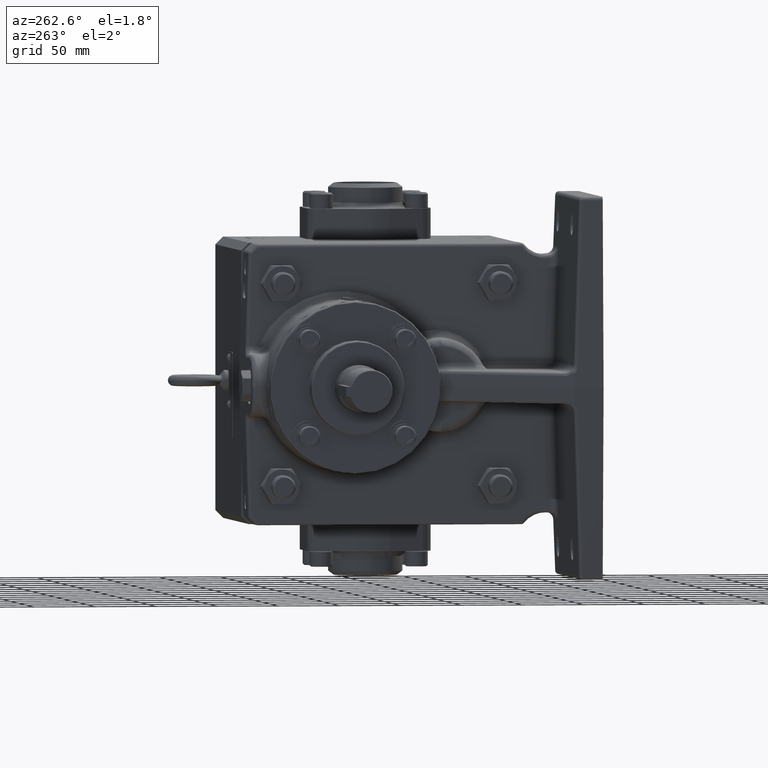
[diagram: clean part render]
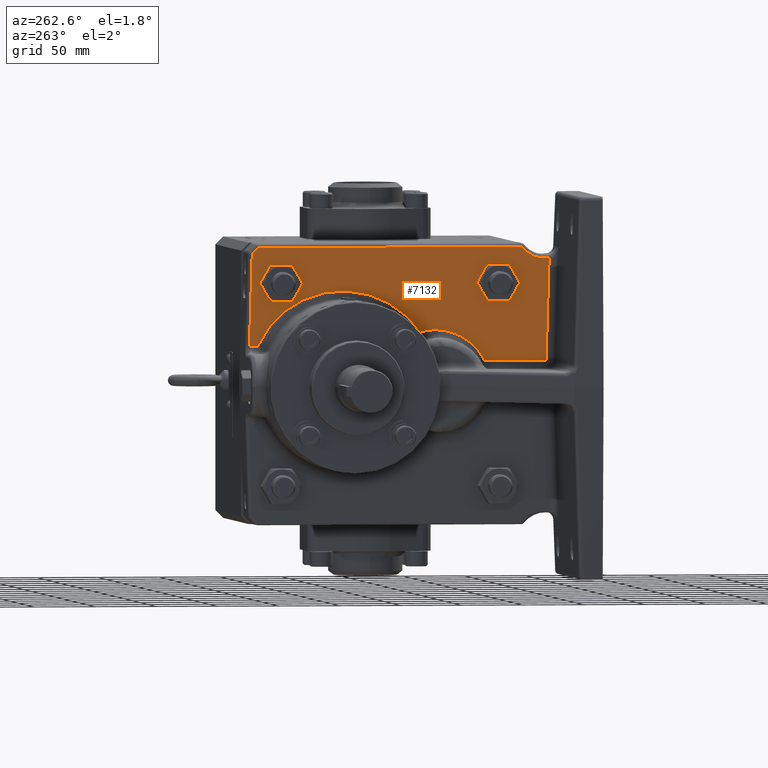
[diagram: same view with one face highlighted and labeled with its STEP entity id]
A machine part, auxiliary view. The second image highlights one B-rep face of the part: STEP entity #7132.
In plain terms, the highlighted planar face has unit normal (-0.9994, -0, 0.0349).
Its self-contained STEP definition (entity closure, byte-faithful):
#754 = EDGE_CURVE ( 'Defeatured_0_745+Defeatured_0_1611+Defeatured_0_1614+Defeatured_0_1612', #26801, #30727, #71236, .T. ) ;
#1373 =( BOUNDED_CURVE ( )  B_SPLINE_CURVE ( 3, ( #95097, #95435, #48903, #2336 ),
 .UNSPECIFIED., .F., .T. ) 
 B_SPLINE_CURVE_WITH_KNOTS ( ( 4, 4 ),
 ( 4.591874973423795600, 4.699251590011818400 ),
 .UNSPECIFIED. ) 
 CURVE ( )  GEOMETRIC_REPRESENTATION_ITEM ( )  RATIONAL_B_SPLINE_CURVE ( ( 1.000000000000000000, 0.9990394192850118300, 0.9990394192850118300, 1.000000000000000000 ) ) 
 REPRESENTATION_ITEM ( '' )  );
#1626 = ORIENTED_EDGE ( 'NONE', *, *, #44027, .T. ) ;
#1677 = CARTESIAN_POINT ( 'NONE',  ( -1.378993915330388300, -2.489583333333333000, 1.665185167131520300 ) ) ;
#1916 = VERTEX_POINT ( 'NONE', #31391 ) ;
#2093 = DIRECTION ( 'NONE',  ( -0.02468518840783174800, 0.7068913075831666500, -0.7068913075831606600 ) ) ;
#2141 = CARTESIAN_POINT ( 'NONE',  ( -1.304759112978663800, -5.264538773476337100, 3.790991769682667400 ) ) ;
#2144 = EDGE_CURVE ( 'Defeatured_0_745+Defeatured_0_1595+Defeatured_0_1597+Defeatured_0_1596', #46769, #93680, #74324, .T. ) ;
#2276 = VERTEX_POINT ( 'NONE', #27534 ) ;
#2284 = LINE ( 'NONE', #35837, #32528 ) ;
#2336 = CARTESIAN_POINT ( 'NONE',  ( -1.324698263213666100, 1.367796135932044300, 3.220009213307036600 ) ) ;
#2914 = ORIENTED_EDGE ( 'NONE', *, *, #4280, .T. ) ;
#3247 = CARTESIAN_POINT ( 'NONE',  ( -1.324698263213668300, -5.632203864067913700, 3.220009213306971800 ) ) ;
#3418 = ORIENTED_EDGE ( 'NONE', *, *, #95058, .T. ) ;
#3775 = EDGE_CURVE ( 'Defeatured_0_745+Defeatured_0_1588+Defeatured_0_1590+Defeatured_0_1597', #77749, #13579, #16184, .T. ) ;
#4280 = EDGE_CURVE ( 'Defeatured_0_745+Defeatured_0_1591+Defeatured_0_1593+Defeatured_0_1592', #26375, #2276, #36766, .T. ) ;
#4400 = CARTESIAN_POINT ( 'NONE',  ( -1.284044246265443100, 2.703150909802377800, 4.384187939604300000 ) ) ;
#4639 = CARTESIAN_POINT ( 'NONE',  ( -1.323614770856536900, -4.351079298475268000, 3.251036374875901000 ) ) ;
#4767 = CARTESIAN_POINT ( 'NONE',  ( -1.378993915330388300, -2.489583333333333000, 1.665185167131520300 ) ) ;
#4824 = LINE ( 'NONE', #77763, #5976 ) ;
#5361 = VERTEX_POINT ( 'NONE', #4400 ) ;
#5658 = EDGE_CURVE ( 'Defeatured_0_745+Defeatured_0_1596+Defeatured_0_1595+Defeatured_0_1594', #93680, #48815, #26939, .T. ) ;
#5976 = VECTOR ( 'NONE', #39470, 39.37007874015748100 ) ;
#6426 = CARTESIAN_POINT ( 'NONE',  ( -1.377229003113887200, -2.655330675058069200, 1.715725640385350200 ) ) ;
#6682 = CARTESIAN_POINT ( 'NONE',  ( -1.393797180168112400, 2.727178028658928400, 1.241275125824375300 ) ) ;
#7132 = ADVANCED_FACE ( 'Defeatured_0_745', ( #16407, #75510, #70715 ), #39856, .T. ) ;
#7222 = CARTESIAN_POINT ( 'NONE',  ( -1.305859267745441000, 1.675408765754267600, 3.759487459130826300 ) ) ;
#7420 = CARTESIAN_POINT ( 'NONE',  ( -1.305859267745442400, -4.675408765754263600, 3.759487459130787600 ) ) ;
#7826 = CARTESIAN_POINT ( 'NONE',  ( -1.393797180168112400, 2.996726818212959400, 1.241275125824375000 ) ) ;
#8234 = DIRECTION ( 'NONE',  ( -2.174001790722235900E-019, 1.000000000000000000, 5.551115123125782700E-017 ) ) ;
#10096 = LINE ( 'NONE', #64139, #99429 ) ;
#10184 = ORIENTED_EDGE ( 'NONE', *, *, #70138, .T. ) ;
#10296 =( BOUNDED_CURVE ( )  B_SPLINE_CURVE ( 3, ( #77249, #7420, #84324, #23003 ),
 .UNSPECIFIED., .F., .F. ) 
 B_SPLINE_CURVE_WITH_KNOTS ( ( 4, 4 ),
 ( 2.499067627606911900, 2.819337298402020900 ),
 .UNSPECIFIED. ) 
 CURVE ( )  GEOMETRIC_REPRESENTATION_ITEM ( )  RATIONAL_B_SPLINE_CURVE ( ( 1.000000000000000000, 0.9914705284451873500, 0.9914705284451873500, 1.000000000000000000 ) ) 
 REPRESENTATION_ITEM ( '' )  );
#10932 = DIRECTION ( 'NONE',  ( 0.03022845326109896800, 0.4997715079447408400, 0.8656296439356044900 ) ) ;
#11397 = CARTESIAN_POINT ( 'NONE',  ( -1.223253749575910200, -7.919999999999999900, 6.125000000000000000 ) ) ;
#12465 = ORIENTED_EDGE ( 'NONE', *, *, #89993, .T. ) ;
#12930 = DIRECTION ( 'NONE',  ( -0.03022845326109898200, 0.4997715079447402300, -0.8656296439356048200 ) ) ;
#12947 = EDGE_CURVE ( 'Defeatured_0_745+Defeatured_0_1592+Defeatured_0_1591+Defeatured_0_1589', #2276, #96882, #27690, .T. ) ;
#13378 = CARTESIAN_POINT ( 'NONE',  ( -1.343293894703794500, -5.324759526419159200, 2.687499999999966200 ) ) ;
#13579 = VERTEX_POINT ( 'NONE', #53308 ) ;
#13905 = CARTESIAN_POINT ( 'NONE',  ( -1.343293894703794200, 2.324759526419161800, 2.687499999999973400 ) ) ;
#13967 = CARTESIAN_POINT ( 'NONE',  ( -1.376336795422238100, -3.000000000000000400, 1.741275125824375700 ) ) ;
#14393 = CARTESIAN_POINT ( 'NONE',  ( -1.304008029025574900, 1.799759570329652500, 3.812499999999974200 ) ) ;
#14414 = LINE ( 'NONE', #38007, #80743 ) ;
#15132 = CARTESIAN_POINT ( 'NONE',  ( -1.322329591248641900, 1.372327363835043900, 3.287839103641580200 ) ) ;
#15885 = CARTESIAN_POINT ( 'NONE',  ( -1.343293894703794200, 1.675240473580832200, 2.687499999999973400 ) ) ;
#16184 =( BOUNDED_CURVE ( )  B_SPLINE_CURVE ( 3, ( #72244, #2141, #48059, #18294 ),
 .UNSPECIFIED., .F., .F. ) 
 B_SPLINE_CURVE_WITH_KNOTS ( ( 4, 4 ),
 ( 3.463848008777565400, 3.784117679572673000 ),
 .UNSPECIFIED. ) 
 CURVE ( )  GEOMETRIC_REPRESENTATION_ITEM ( )  RATIONAL_B_SPLINE_CURVE ( ( 1.000000000000000000, 0.9914705284451873500, 0.9914705284451873500, 1.000000000000000000 ) ) 
 REPRESENTATION_ITEM ( '' )  );
#16407 = FACE_BOUND ( 'NONE', #64781, .T. ) ;
#17162 = CARTESIAN_POINT ( 'NONE',  ( -1.411257564913986000, -6.803570671608935200, 0.7412751258243747100 ) ) ;
#17612 = CARTESIAN_POINT ( 'NONE',  ( -1.305859267745441000, 2.324591234245726200, 3.759487459130827200 ) ) ;
#17933 = DIRECTION ( 'NONE',  ( 0.03022845326109896800, 0.4997715079447408400, 0.8656296439356044900 ) ) ;
#18294 = CARTESIAN_POINT ( 'NONE',  ( -1.307280342109546700, -5.378861164710618100, 3.718793213706446100 ) ) ;
#18378 =( BOUNDED_CURVE ( )  B_SPLINE_CURVE ( 3, ( #52861, #29245, #61610, #22108 ),
 .UNSPECIFIED., .F., .F. ) 
 B_SPLINE_CURVE_WITH_KNOTS ( ( 4, 4 ),
 ( 3.029528429868846700, 4.039669113737849300 ),
 .UNSPECIFIED. ) 
 CURVE ( )  GEOMETRIC_REPRESENTATION_ITEM ( )  RATIONAL_B_SPLINE_CURVE ( ( 1.000000000000000000, 0.9167602935398495600, 0.9167602935398495600, 1.000000000000000000 ) ) 
 REPRESENTATION_ITEM ( '' )  );
#18422 = CARTESIAN_POINT ( 'NONE',  ( -1.323906247144228200, -5.631906431572037500, 3.242689586075596000 ) ) ;
#18500 = VERTEX_POINT ( 'NONE', #90150 ) ;
#18596 = ORIENTED_EDGE ( 'NONE', *, *, #69742, .T. ) ;
#18809 = DIRECTION ( 'NONE',  ( -0.9993908270190957600, -2.154578984104408800E-018, 0.03489949670250104600 ) ) ;
#19164 = CARTESIAN_POINT ( 'NONE',  ( -1.323115930659779100, -4.369605429994019900, 3.265321289097958600 ) ) ;
#19544 = DIRECTION ( 'NONE',  ( -0.03022845326109896800, 0.4997715079447409600, -0.8656296439356043800 ) ) ;
#19586 = VERTEX_POINT ( 'NONE', #83460 ) ;
#20148 = EDGE_CURVE ( 'Defeatured_0_745+Defeatured_0_1609+Defeatured_0_1612+Defeatured_0_1610', #96936, #36644, #1373, .T. ) ;
#20657 = LINE ( 'NONE', #13378, #43675 ) ;
#20817 = DIRECTION ( 'NONE',  ( 0.03022845326109896800, -0.4997715079447408400, 0.8656296439356044900 ) ) ;
#20835 = DIRECTION ( 'NONE',  ( 0.03022845326109897500, -0.4997715079447402300, 0.8656296439356047100 ) ) ;
#21028 = VERTEX_POINT ( 'NONE', #79705 ) ;
#21145 = ORIENTED_EDGE ( 'NONE', *, *, #27691, .T. ) ;
#21547 = VERTEX_POINT ( 'NONE', #15885 ) ;
#21556 = CARTESIAN_POINT ( 'NONE',  ( -1.221830637781655900, -6.751575405039480100, 6.165752589790172600 ) ) ;
#22108 = CARTESIAN_POINT ( 'NONE',  ( -1.284044246265443100, -5.786994672716434500, 4.384187939604300000 ) ) ;
#23003 = CARTESIAN_POINT ( 'NONE',  ( -1.304008029025578000, -4.799759570329754900, 3.812499999999967100 ) ) ;
#24526 = EDGE_CURVE ( 'Defeatured_0_745+Defeatured_0_774+Defeatured_0_773+Defeatured_0_775', #90071, #5361, #38066, .T. ) ;
#25797 = EDGE_CURVE ( 'Defeatured_0_745+Defeatured_0_777+Defeatured_0_776+Defeatured_0_778', #89302, #73300, #64105, .T. ) ;
#25880 = EDGE_CURVE ( 'Defeatured_0_745+Defeatured_0_1589+Defeatured_0_1592+Defeatured_0_1590', #96882, #30117, #10296, .T. ) ;
#26356 = CARTESIAN_POINT ( 'NONE',  ( -1.304008029025574900, 1.799759570329652500, 3.812499999999974200 ) ) ;
#26375 = VERTEX_POINT ( 'NONE', #30341 ) ;
#26801 = VERTEX_POINT ( 'NONE', #26356 ) ;
#26869 = CARTESIAN_POINT ( 'NONE',  ( -1.323115930659779100, -5.630394570005970300, 3.265321289097959000 ) ) ;
#26939 = LINE ( 'NONE', #72824, #37849 ) ;
#27534 = CARTESIAN_POINT ( 'NONE',  ( -1.322329591248639500, -4.372327363835084100, 3.287839103641647700 ) ) ;
#27690 = LINE ( 'NONE', #4639, #62719 ) ;
#27691 = EDGE_CURVE ( 'Defeatured_0_745+Defeatured_0_1615+Defeatured_0_1617+Defeatured_0_1616', #64459, #1916, #86890, .T. ) ;
#28946 = CARTESIAN_POINT ( 'NONE',  ( -1.323614770856536400, 2.648920701524724000, 3.251036374875908600 ) ) ;
#29194 = VECTOR ( 'NONE', #66674, 39.37007874015748100 ) ;
#29245 = CARTESIAN_POINT ( 'NONE',  ( -1.298288826602288500, -6.328571119045808900, 3.976276529169566300 ) ) ;
#29391 = ORIENTED_EDGE ( 'NONE', *, *, #95771, .T. ) ;
#29905 = LINE ( 'NONE', #74268, #90129 ) ;
#30117 = VERTEX_POINT ( 'NONE', #71073 ) ;
#30341 = CARTESIAN_POINT ( 'NONE',  ( -1.324698263213668300, -4.367796135932074700, 3.220009213306971800 ) ) ;
#30372 = CARTESIAN_POINT ( 'NONE',  ( -1.302306139691979700, -1.013034608930926600, 3.861235734016379900 ) ) ;
#30616 = CARTESIAN_POINT ( 'NONE',  ( -1.304008029025578200, -5.200240429670234500, 3.812499999999967100 ) ) ;
#30727 = VERTEX_POINT ( 'NONE', #94944 ) ;
#30937 = EDGE_CURVE ( 'Defeatured_0_745+Defeatured_0_1610+Defeatured_0_1609+Defeatured_0_1608', #36644, #21547, #29905, .T. ) ;
#31391 = CARTESIAN_POINT ( 'NONE',  ( -1.322329591248641700, 2.627672636164950500, 3.287839103641580600 ) ) ;
#31486 = ORIENTED_EDGE ( 'NONE', *, *, #50681, .T. ) ;
#32528 = VECTOR ( 'NONE', #97126, 39.37007874015748900 ) ;
#32566 = CARTESIAN_POINT ( 'NONE',  ( -1.304008029025578000, 2.200240429670339300, 3.812499999999974200 ) ) ;
#32620 = VECTOR ( 'NONE', #70831, 39.37007874015748100 ) ;
#32980 = VECTOR ( 'NONE', #17933, 39.37007874015748900 ) ;
#34145 = ORIENTED_EDGE ( 'NONE', *, *, #30937, .T. ) ;
#35019 =( BOUNDED_CURVE ( )  B_SPLINE_CURVE ( 3, ( #69268, #54180, #84739, #39028 ),
 .UNSPECIFIED., .F., .F. ) 
 B_SPLINE_CURVE_WITH_KNOTS ( ( 4, 4 ),
 ( 0.0000000000000000000, 1.127885282721258400 ),
 .UNSPECIFIED. ) 
 CURVE ( )  GEOMETRIC_REPRESENTATION_ITEM ( )  RATIONAL_B_SPLINE_CURVE ( ( 1.000000000000000000, 0.8967695031523442700, 0.8967695031523442700, 1.000000000000000000 ) ) 
 REPRESENTATION_ITEM ( '' )  );
#35119 = EDGE_CURVE ( 'Defeatured_0_745+Defeatured_0_1590+Defeatured_0_1589+Defeatured_0_1588', #30117, #77749, #4824, .T. ) ;
#35837 = CARTESIAN_POINT ( 'NONE',  ( -1.303989786931689700, 1.675542072828795300, 3.813022385220969500 ) ) ;
#36644 = VERTEX_POINT ( 'NONE', #43084 ) ;
#36736 = DIRECTION ( 'NONE',  ( -7.703719777548941700E-034, 1.000000000000000000, 6.173667782292119800E-017 ) ) ;
#36766 =( BOUNDED_CURVE ( )  B_SPLINE_CURVE ( 3, ( #65357, #42216, #19164, #73080 ),
 .UNSPECIFIED., .F., .F. ) 
 B_SPLINE_CURVE_WITH_KNOTS ( ( 4, 4 ),
 ( 1.583933717167673700, 1.691310333755912600 ),
 .UNSPECIFIED. ) 
 CURVE ( )  GEOMETRIC_REPRESENTATION_ITEM ( )  RATIONAL_B_SPLINE_CURVE ( ( 1.000000000000000000, 0.9990394192850079500, 0.9990394192850079500, 1.000000000000000000 ) ) 
 REPRESENTATION_ITEM ( '' )  );
#37481 = CARTESIAN_POINT ( 'NONE',  ( -1.324698263213666100, 2.632203864067950600, 3.220009213307036600 ) ) ;
#37849 = VECTOR ( 'NONE', #19544, 39.37007874015748100 ) ;
#38007 = CARTESIAN_POINT ( 'NONE',  ( -1.393943070426967700, 2.996872708471815200, 1.237097375420277000 ) ) ;
#38066 = LINE ( 'NONE', #59293, #86204 ) ;
#38736 = EDGE_CURVE ( 'Defeatured_0_745+Defeatured_0_1613+Defeatured_0_1616+Defeatured_0_1614', #21028, #88041, #57267, .T. ) ;
#39028 = CARTESIAN_POINT ( 'NONE',  ( -1.411257564913986000, -4.581138830084190900, 0.7412751258243747100 ) ) ;
#39470 = DIRECTION ( 'NONE',  ( 2.174001790722235900E-019, -1.000000000000000000, -5.551115123125782700E-017 ) ) ;
#39856 = PLANE ( 'NONE',  #62842 ) ;
#40656 = CARTESIAN_POINT ( 'NONE',  ( -1.322329591248639500, -5.627672636164905200, 3.287839103641648600 ) ) ;
#41573 = DIRECTION ( 'NONE',  ( 2.155892295440530300E-018, -1.000000000000000000, 1.344279714867806900E-035 ) ) ;
#42216 = CARTESIAN_POINT ( 'NONE',  ( -1.323906247144228200, -4.368093568427951800, 3.242689586075596000 ) ) ;
#43084 = CARTESIAN_POINT ( 'NONE',  ( -1.324698263213666100, 1.367796135932044300, 3.220009213307036600 ) ) ;
#43629 = LINE ( 'NONE', #28946, #51968 ) ;
#43675 = VECTOR ( 'NONE', #8234, 39.37007874015748100 ) ;
#44027 = EDGE_CURVE ( 'Defeatured_0_745+Defeatured_0_1593+Defeatured_0_1594+Defeatured_0_1591', #95054, #26375, #58831, .T. ) ;
#44921 = LINE ( 'NONE', #21556, #87022 ) ;
#45119 = EDGE_CURVE ( 'Defeatured_0_745+Defeatured_0_777+Defeatured_0_776+Defeatured_0_778', #73300, #58304, #35019, .T. ) ;
#46128 = CARTESIAN_POINT ( 'NONE',  ( -1.324698263213668300, -5.632203864067913700, 3.220009213306971800 ) ) ;
#46769 = VERTEX_POINT ( 'NONE', #40656 ) ;
#48059 = CARTESIAN_POINT ( 'NONE',  ( -1.305859267745442400, -5.324591234245727600, 3.759487459130787600 ) ) ;
#48503 = ORIENTED_EDGE ( 'NONE', *, *, #98596, .T. ) ;
#48815 = VERTEX_POINT ( 'NONE', #96578 ) ;
#48903 = CARTESIAN_POINT ( 'NONE',  ( -1.323906247144227800, 1.368093568427922300, 3.242689586075616000 ) ) ;
#49304 = EDGE_CURVE ( 'Defeatured_0_745+Defeatured_0_778+Defeatured_0_777+Defeatured_0_772', #58304, #19586, #70287, .T. ) ;
#49322 = DIRECTION ( 'NONE',  ( 2.155892295440530300E-018, -1.000000000000000000, -2.993299377711851100E-034 ) ) ;
#50681 = EDGE_CURVE ( 'Defeatured_0_745+Defeatured_0_726+Defeatured_0_775+Defeatured_0_744', #84789, #84147, #14414, .T. ) ;
#50694 = CARTESIAN_POINT ( 'NONE',  ( -1.343239754781383700, -4.674345370201588200, 2.689050364530839200 ) ) ;
#50979 = VECTOR ( 'NONE', #41573, 39.37007874015748100 ) ;
#51968 = VECTOR ( 'NONE', #20817, 39.37007874015748900 ) ;
#52861 = CARTESIAN_POINT ( 'NONE',  ( -1.296921585105890800, -6.676484457715252700, 4.015429202959309900 ) ) ;
#53308 = CARTESIAN_POINT ( 'NONE',  ( -1.307280342109546700, -5.378861164710618100, 3.718793213706446100 ) ) ;
#53420 = EDGE_CURVE ( 'Defeatured_0_745+Defeatured_0_1614+Defeatured_0_1613+Defeatured_0_1611', #88041, #26801, #96568, .T. ) ;
#53504 = CARTESIAN_POINT ( 'NONE',  ( -1.304759112978663300, 1.735461226523608000, 3.790991769682682000 ) ) ;
#54180 = CARTESIAN_POINT ( 'NONE',  ( -1.376336795422237900, -3.695395597497682400, 1.741275125824375700 ) ) ;
#55347 = ORIENTED_EDGE ( 'NONE', *, *, #2144, .T. ) ;
#56306 = EDGE_LOOP ( 'NONE', ( #63713, #68373, #81532, #48503, #31486, #76823, #10184, #90022, #82571, #65248 ) ) ;
#56653 = DIRECTION ( 'NONE',  ( 0.03489949670250104600, 0.0000000000000000000, 0.9993908270190957600 ) ) ;
#56953 = CARTESIAN_POINT ( 'NONE',  ( -1.343293894703794200, 1.675240473580832200, 2.687499999999973400 ) ) ;
#57051 = ORIENTED_EDGE ( 'NONE', *, *, #85640, .T. ) ;
#57267 =( BOUNDED_CURVE ( )  B_SPLINE_CURVE ( 3, ( #63187, #17612, #87071, #70561 ),
 .UNSPECIFIED., .F., .F. ) 
 B_SPLINE_CURVE_WITH_KNOTS ( ( 4, 4 ),
 ( 2.499067627607034900, 2.819337298401869400 ),
 .UNSPECIFIED. ) 
 CURVE ( )  GEOMETRIC_REPRESENTATION_ITEM ( )  RATIONAL_B_SPLINE_CURVE ( ( 1.000000000000000000, 0.9914705284452018900, 0.9914705284452018900, 1.000000000000000000 ) ) 
 REPRESENTATION_ITEM ( '' )  );
#58304 = VERTEX_POINT ( 'NONE', #78454 ) ;
#58831 = LINE ( 'NONE', #50694, #76830 ) ;
#59293 = CARTESIAN_POINT ( 'NONE',  ( -1.284044246265443100, 2.752856537287145400, 4.384187939604300000 ) ) ;
#59408 = LINE ( 'NONE', #56953, #29194 ) ;
#60166 = CARTESIAN_POINT ( 'NONE',  ( -1.303989786931689900, -5.324457927171197400, 3.813022385220961900 ) ) ;
#60489 = CARTESIAN_POINT ( 'NONE',  ( -1.376336795422238100, -3.000000000000000400, 1.741275125824375700 ) ) ;
#60497 = LINE ( 'NONE', #71830, #76072 ) ;
#60699 = DIRECTION ( 'NONE',  ( 0.03487826274237469700, -0.03487826274237112300, 0.9987827659587184000 ) ) ;
#60943 = EDGE_LOOP ( 'NONE', ( #98679, #55347, #70418, #18596, #1626, #2914, #67849, #67026, #74572, #82837 ) ) ;
#61161 = VERTEX_POINT ( 'NONE', #13905 ) ;
#61297 = CARTESIAN_POINT ( 'NONE',  ( -1.307280342109544000, 1.621138835289415200, 3.718793213706524700 ) ) ;
#61610 = CARTESIAN_POINT ( 'NONE',  ( -1.293606636164508000, -6.005153321515815700, 4.110356920464697700 ) ) ;
#62719 = VECTOR ( 'NONE', #20835, 39.37007874015748900 ) ;
#62842 = AXIS2_PLACEMENT_3D ( 'NONE', #11397, #18809, #56653 ) ;
#63187 = CARTESIAN_POINT ( 'NONE',  ( -1.307280342109543800, 2.378861164710579500, 3.718793213706524700 ) ) ;
#63375 = LINE ( 'NONE', #60166, #65752 ) ;
#63713 = ORIENTED_EDGE ( 'NONE', *, *, #89380, .T. ) ;
#64105 =( BOUNDED_CURVE ( )  B_SPLINE_CURVE ( 3, ( #4767, #6426, #67855, #60489 ),
 .UNSPECIFIED., .F., .F. ) 
 B_SPLINE_CURVE_WITH_KNOTS ( ( 4, 4 ),
 ( 5.987216503820654600, 6.283185307179586200 ),
 .UNSPECIFIED. ) 
 CURVE ( )  GEOMETRIC_REPRESENTATION_ITEM ( )  RATIONAL_B_SPLINE_CURVE ( ( 1.000000000000000000, 0.9927135176485536400, 0.9927135176485536400, 1.000000000000000000 ) ) 
 REPRESENTATION_ITEM ( '' )  );
#64139 = CARTESIAN_POINT ( 'NONE',  ( -1.291934330218052800, 2.929093352292780200, 4.158245497113900200 ) ) ;
#64154 = CARTESIAN_POINT ( 'NONE',  ( -1.343293894703794500, -4.675240473580830200, 2.687499999999966200 ) ) ;
#64459 = VERTEX_POINT ( 'NONE', #37481 ) ;
#64689 = CARTESIAN_POINT ( 'NONE',  ( -1.323906247144227800, 2.631906431572072200, 3.242689586075616000 ) ) ;
#64781 = EDGE_LOOP ( 'NONE', ( #21145, #12465, #80160, #81081, #82646, #57051, #91942, #34145, #29391, #3418 ) ) ;
#65248 = ORIENTED_EDGE ( 'NONE', *, *, #49304, .T. ) ;
#65357 = CARTESIAN_POINT ( 'NONE',  ( -1.324698263213668300, -4.367796135932074700, 3.220009213306971800 ) ) ;
#65752 = VECTOR ( 'NONE', #89421, 39.37007874015748900 ) ;
#66014 = CARTESIAN_POINT ( 'NONE',  ( -1.323115930659779500, 2.630394570006007600, 3.265321289097935100 ) ) ;
#66674 = DIRECTION ( 'NONE',  ( -2.155892295440530700E-018, 1.000000000000000000, -0.0000000000000000000 ) ) ;
#67026 = ORIENTED_EDGE ( 'NONE', *, *, #25880, .T. ) ;
#67849 = ORIENTED_EDGE ( 'NONE', *, *, #12947, .T. ) ;
#67855 = CARTESIAN_POINT ( 'NONE',  ( -1.376336795422237600, -2.826718377415440300, 1.741275125824375300 ) ) ;
#68373 = ORIENTED_EDGE ( 'NONE', *, *, #87149, .T. ) ;
#68759 = CARTESIAN_POINT ( 'NONE',  ( -1.309790666311927200, 1.624558497168621100, 3.646906934024827200 ) ) ;
#69268 = CARTESIAN_POINT ( 'NONE',  ( -1.376336795422238100, -3.000000000000000400, 1.741275125824375700 ) ) ;
#69405 = VERTEX_POINT ( 'NONE', #86205 ) ;
#69742 = EDGE_CURVE ( 'Defeatured_0_745+Defeatured_0_1594+Defeatured_0_1596+Defeatured_0_1593', #48815, #95054, #20657, .T. ) ;
#70138 = EDGE_CURVE ( 'Defeatured_0_745+Defeatured_0_776+Defeatured_0_744+Defeatured_0_777', #18500, #89302, #99393, .T. ) ;
#70287 = LINE ( 'NONE', #17162, #50979 ) ;
#70418 = ORIENTED_EDGE ( 'NONE', *, *, #5658, .T. ) ;
#70561 = CARTESIAN_POINT ( 'NONE',  ( -1.304008029025578000, 2.200240429670339300, 3.812499999999974200 ) ) ;
#70715 = FACE_OUTER_BOUND ( 'NONE', #56306, .T. ) ;
#70831 = DIRECTION ( 'NONE',  ( 2.155892295440530700E-018, -1.000000000000000000, -0.0000000000000000000 ) ) ;
#71073 = CARTESIAN_POINT ( 'NONE',  ( -1.304008029025578000, -4.799759570329754900, 3.812499999999967100 ) ) ;
#71236 =( BOUNDED_CURVE ( )  B_SPLINE_CURVE ( 3, ( #14393, #53504, #7222, #61297 ),
 .UNSPECIFIED., .F., .F. ) 
 B_SPLINE_CURVE_WITH_KNOTS ( ( 4, 4 ),
 ( 3.463848008777721300, 3.784117679572551300 ),
 .UNSPECIFIED. ) 
 CURVE ( )  GEOMETRIC_REPRESENTATION_ITEM ( )  RATIONAL_B_SPLINE_CURVE ( ( 1.000000000000000000, 0.9914705284452021200, 0.9914705284452021200, 1.000000000000000000 ) ) 
 REPRESENTATION_ITEM ( '' )  );
#71477 = CARTESIAN_POINT ( 'NONE',  ( -1.304008029025578000, 2.324759526419161800, 3.812499999999974200 ) ) ;
#71830 = CARTESIAN_POINT ( 'NONE',  ( -1.393797180168112400, 2.561737691489900400, 1.241275125824375000 ) ) ;
#72244 = CARTESIAN_POINT ( 'NONE',  ( -1.304008029025578200, -5.200240429670234500, 3.812499999999967100 ) ) ;
#72824 = CARTESIAN_POINT ( 'NONE',  ( -1.323614770856536900, -5.650117404151925100, 3.251036374875901000 ) ) ;
#73080 = CARTESIAN_POINT ( 'NONE',  ( -1.322329591248639500, -4.372327363835084100, 3.287839103641647700 ) ) ;
#73300 = VERTEX_POINT ( 'NONE', #13967 ) ;
#74268 = CARTESIAN_POINT ( 'NONE',  ( -1.323614770856536400, 1.349882595848065800, 3.251036374875908600 ) ) ;
#74324 =( BOUNDED_CURVE ( )  B_SPLINE_CURVE ( 3, ( #88514, #26869, #18422, #3247 ),
 .UNSPECIFIED., .F., .F. ) 
 B_SPLINE_CURVE_WITH_KNOTS ( ( 4, 4 ),
 ( 4.591874973423673000, 4.699251590011912500 ),
 .UNSPECIFIED. ) 
 CURVE ( )  GEOMETRIC_REPRESENTATION_ITEM ( )  RATIONAL_B_SPLINE_CURVE ( ( 1.000000000000000000, 0.9990394192850079500, 0.9990394192850079500, 1.000000000000000000 ) ) 
 REPRESENTATION_ITEM ( '' )  );
#74572 = ORIENTED_EDGE ( 'NONE', *, *, #35119, .T. ) ;
#75510 = FACE_BOUND ( 'NONE', #60943, .T. ) ;
#76072 = VECTOR ( 'NONE', #49322, 39.37007874015748100 ) ;
#76823 = ORIENTED_EDGE ( 'NONE', *, *, #100075, .T. ) ;
#76830 = VECTOR ( 'NONE', #10932, 39.37007874015748900 ) ;
#77154 = CARTESIAN_POINT ( 'NONE',  ( -1.307280342109546700, -4.621138835289370300, 3.718793213706445700 ) ) ;
#77249 = CARTESIAN_POINT ( 'NONE',  ( -1.307280342109546700, -4.621138835289370300, 3.718793213706445700 ) ) ;
#77749 = VERTEX_POINT ( 'NONE', #30616 ) ;
#77763 = CARTESIAN_POINT ( 'NONE',  ( -1.304008029025578200, -4.675240473580829300, 3.812499999999967100 ) ) ;
#78125 = CARTESIAN_POINT ( 'NONE',  ( -1.290695762034462100, 2.893625400079319600, 4.193713449327360900 ) ) ;
#78454 = CARTESIAN_POINT ( 'NONE',  ( -1.411257564913986000, -4.581138830084190900, 0.7412751258243747100 ) ) ;
#79705 = CARTESIAN_POINT ( 'NONE',  ( -1.307280342109543800, 2.378861164710579500, 3.718793213706524700 ) ) ;
#79917 = LINE ( 'NONE', #80270, #32980 ) ;
#80160 = ORIENTED_EDGE ( 'NONE', *, *, #38736, .T. ) ;
#80270 = CARTESIAN_POINT ( 'NONE',  ( -1.343239754781383500, 2.325654629798403800, 2.689050364530847200 ) ) ;
#80743 = VECTOR ( 'NONE', #84699, 39.37007874015748100 ) ;
#81081 = ORIENTED_EDGE ( 'NONE', *, *, #53420, .T. ) ;
#81532 = ORIENTED_EDGE ( 'NONE', *, *, #24526, .T. ) ;
#82571 = ORIENTED_EDGE ( 'NONE', *, *, #45119, .T. ) ;
#82646 = ORIENTED_EDGE ( 'NONE', *, *, #754, .T. ) ;
#82837 = ORIENTED_EDGE ( 'NONE', *, *, #3775, .T. ) ;
#83460 = CARTESIAN_POINT ( 'NONE',  ( -1.411257564913986000, -6.562148477907169500, 0.7412751258243747100 ) ) ;
#84147 = VERTEX_POINT ( 'NONE', #7826 ) ;
#84235 = CARTESIAN_POINT ( 'NONE',  ( -1.378993915330388300, -2.489583333333333000, 1.665185167131520300 ) ) ;
#84324 = CARTESIAN_POINT ( 'NONE',  ( -1.304759112978663800, -4.735461226523654000, 3.790991769682667400 ) ) ;
#84699 = DIRECTION ( 'NONE',  ( -0.03487826274237469700, 0.03487826274237134500, -0.9987827659587184000 ) ) ;
#84739 = CARTESIAN_POINT ( 'NONE',  ( -1.389317005449821600, -4.283112145442327500, 1.369570543809049300 ) ) ;
#84789 = VERTEX_POINT ( 'NONE', #78125 ) ;
#85640 = EDGE_CURVE ( 'Defeatured_0_745+Defeatured_0_1612+Defeatured_0_1611+Defeatured_0_1609', #30727, #96936, #2284, .T. ) ;
#86204 = VECTOR ( 'NONE', #36736, 39.37007874015748100 ) ;
#86205 = CARTESIAN_POINT ( 'NONE',  ( -1.296921585105890800, -6.676484457715252700, 4.015429202959309900 ) ) ;
#86890 =( BOUNDED_CURVE ( )  B_SPLINE_CURVE ( 3, ( #88229, #64689, #66014, #87574 ),
 .UNSPECIFIED., .F., .F. ) 
 B_SPLINE_CURVE_WITH_KNOTS ( ( 4, 4 ),
 ( 1.583933717167767900, 1.691310333755791300 ),
 .UNSPECIFIED. ) 
 CURVE ( )  GEOMETRIC_REPRESENTATION_ITEM ( )  RATIONAL_B_SPLINE_CURVE ( ( 1.000000000000000000, 0.9990394192850118300, 0.9990394192850118300, 1.000000000000000000 ) ) 
 REPRESENTATION_ITEM ( '' )  );
#87022 = VECTOR ( 'NONE', #60699, 39.37007874015748100 ) ;
#87071 = CARTESIAN_POINT ( 'NONE',  ( -1.304759112978663300, 2.264538773476385100, 3.790991769682681600 ) ) ;
#87149 = EDGE_CURVE ( 'Defeatured_0_745+Defeatured_0_773+Defeatured_0_772+Defeatured_0_774', #69405, #90071, #18378, .T. ) ;
#87574 = CARTESIAN_POINT ( 'NONE',  ( -1.322329591248641700, 2.627672636164950500, 3.287839103641580600 ) ) ;
#88041 = VERTEX_POINT ( 'NONE', #32566 ) ;
#88229 = CARTESIAN_POINT ( 'NONE',  ( -1.324698263213666100, 2.632203864067950600, 3.220009213307036600 ) ) ;
#88232 = EDGE_CURVE ( 'Defeatured_0_745+Defeatured_0_1597+Defeatured_0_1588+Defeatured_0_1595', #13579, #46769, #63375, .T. ) ;
#88514 = CARTESIAN_POINT ( 'NONE',  ( -1.322329591248639500, -5.627672636164905200, 3.287839103641648600 ) ) ;
#89302 = VERTEX_POINT ( 'NONE', #1677 ) ;
#89380 = EDGE_CURVE ( 'Defeatured_0_745+Defeatured_0_772+Defeatured_0_778+Defeatured_0_773', #19586, #69405, #44921, .T. ) ;
#89421 = DIRECTION ( 'NONE',  ( -0.03022845326109896800, -0.4997715079447408400, -0.8656296439356044900 ) ) ;
#89993 = EDGE_CURVE ( 'Defeatured_0_745+Defeatured_0_1616+Defeatured_0_1615+Defeatured_0_1613', #1916, #21028, #43629, .T. ) ;
#90022 = ORIENTED_EDGE ( 'NONE', *, *, #25797, .T. ) ;
#90071 = VERTEX_POINT ( 'NONE', #98731 ) ;
#90129 = VECTOR ( 'NONE', #12930, 39.37007874015748100 ) ;
#90150 = CARTESIAN_POINT ( 'NONE',  ( -1.393797180168112400, 2.727178028658928400, 1.241275125824375300 ) ) ;
#91942 = ORIENTED_EDGE ( 'NONE', *, *, #20148, .T. ) ;
#93680 = VERTEX_POINT ( 'NONE', #46128 ) ;
#94944 = CARTESIAN_POINT ( 'NONE',  ( -1.307280342109544000, 1.621138835289415200, 3.718793213706524700 ) ) ;
#95054 = VERTEX_POINT ( 'NONE', #64154 ) ;
#95058 = EDGE_CURVE ( 'Defeatured_0_745+Defeatured_0_1617+Defeatured_0_1608+Defeatured_0_1615', #61161, #64459, #79917, .T. ) ;
#95097 = CARTESIAN_POINT ( 'NONE',  ( -1.322329591248641900, 1.372327363835043900, 3.287839103641580200 ) ) ;
#95435 = CARTESIAN_POINT ( 'NONE',  ( -1.323115930659779500, 1.369605429993986600, 3.265321289097934600 ) ) ;
#95771 = EDGE_CURVE ( 'Defeatured_0_745+Defeatured_0_1608+Defeatured_0_1610+Defeatured_0_1617', #21547, #61161, #59408, .T. ) ;
#96568 = LINE ( 'NONE', #71477, #32620 ) ;
#96578 = CARTESIAN_POINT ( 'NONE',  ( -1.343293894703794500, -5.324759526419159200, 2.687499999999966200 ) ) ;
#96882 = VERTEX_POINT ( 'NONE', #77154 ) ;
#96936 = VERTEX_POINT ( 'NONE', #15132 ) ;
#97126 = DIRECTION ( 'NONE',  ( -0.03022845326109896800, -0.4997715079447408400, -0.8656296439356044900 ) ) ;
#98596 = EDGE_CURVE ( 'Defeatured_0_745+Defeatured_0_775+Defeatured_0_774+Defeatured_0_726', #5361, #84789, #10096, .T. ) ;
#98679 = ORIENTED_EDGE ( 'NONE', *, *, #88232, .T. ) ;
#98731 = CARTESIAN_POINT ( 'NONE',  ( -1.284044246265443100, -5.786994672716434500, 4.384187939604300000 ) ) ;
#99393 =( BOUNDED_CURVE ( )  B_SPLINE_CURVE ( 3, ( #6682, #68759, #30372, #84235 ),
 .UNSPECIFIED., .F., .F. ) 
 B_SPLINE_CURVE_WITH_KNOTS ( ( 4, 4 ),
 ( 2.000571758099424400, 4.120451373666826500 ),
 .UNSPECIFIED. ) 
 CURVE ( )  GEOMETRIC_REPRESENTATION_ITEM ( )  RATIONAL_B_SPLINE_CURVE ( ( 1.000000000000000000, 0.6592830599898411600, 0.6592830599898411600, 1.000000000000000000 ) ) 
 REPRESENTATION_ITEM ( '' )  );
#99429 = VECTOR ( 'NONE', #2093, 39.37007874015748100 ) ;
#100075 = EDGE_CURVE ( 'Defeatured_0_745+Defeatured_0_744+Defeatured_0_726+Defeatured_0_776', #84147, #18500, #60497, .T. ) ;